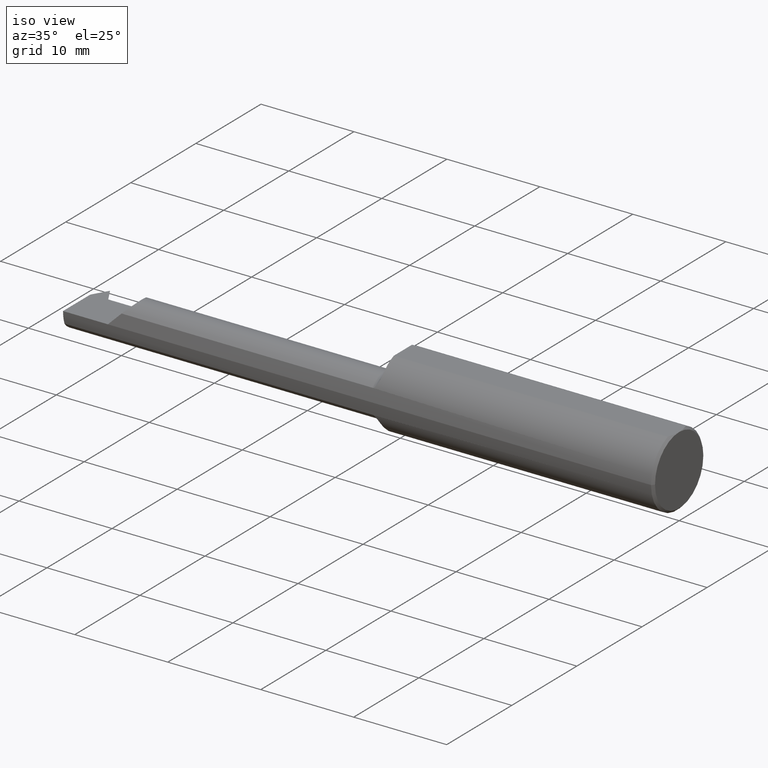
[diagram: clean part render]
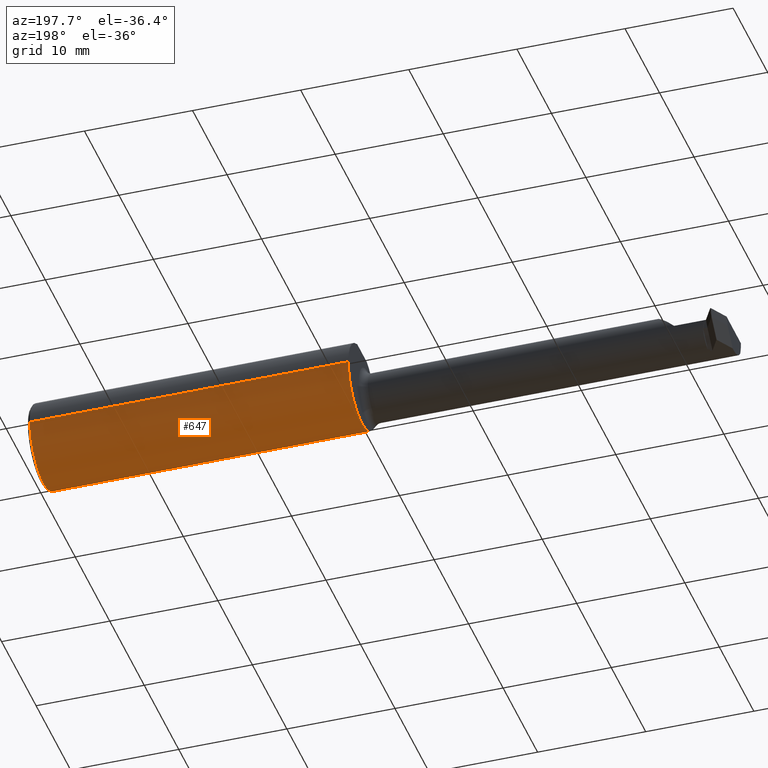
[diagram: tour spotlight — one face highlighted and labeled with its STEP entity id]
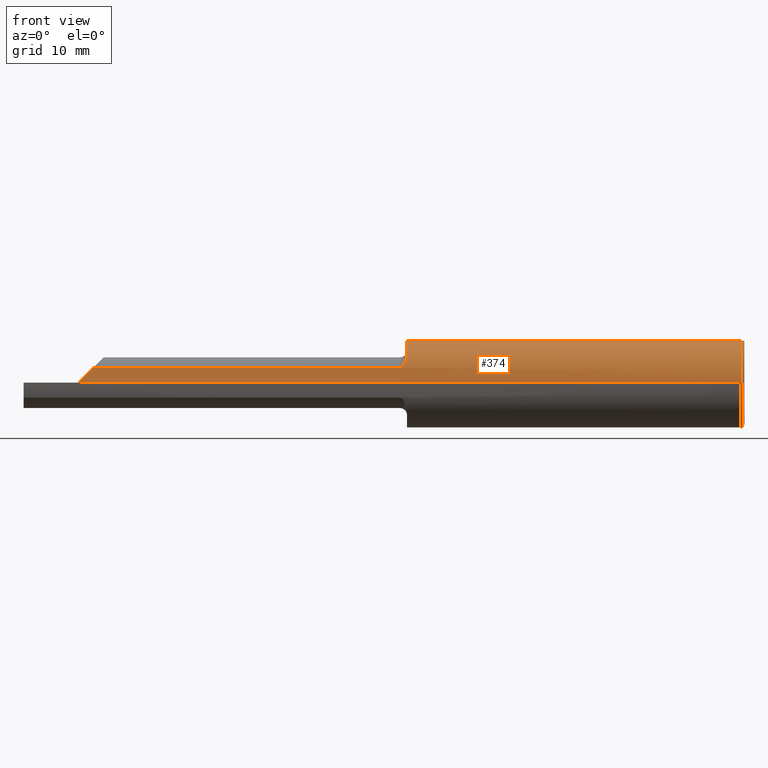
[diagram: tour spotlight — one face highlighted and labeled with its STEP entity id]
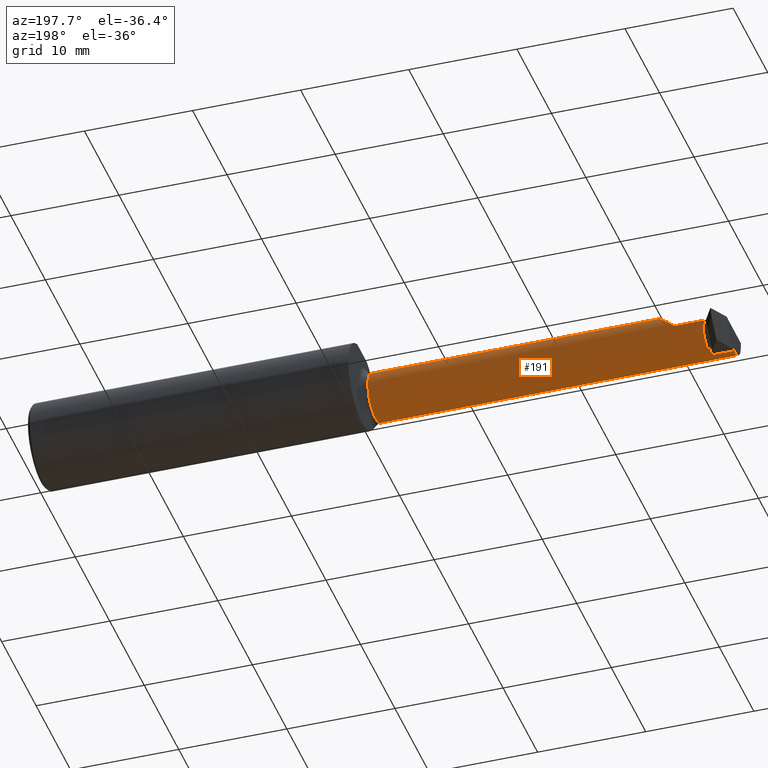
[diagram: tour spotlight — one face highlighted and labeled with its STEP entity id]
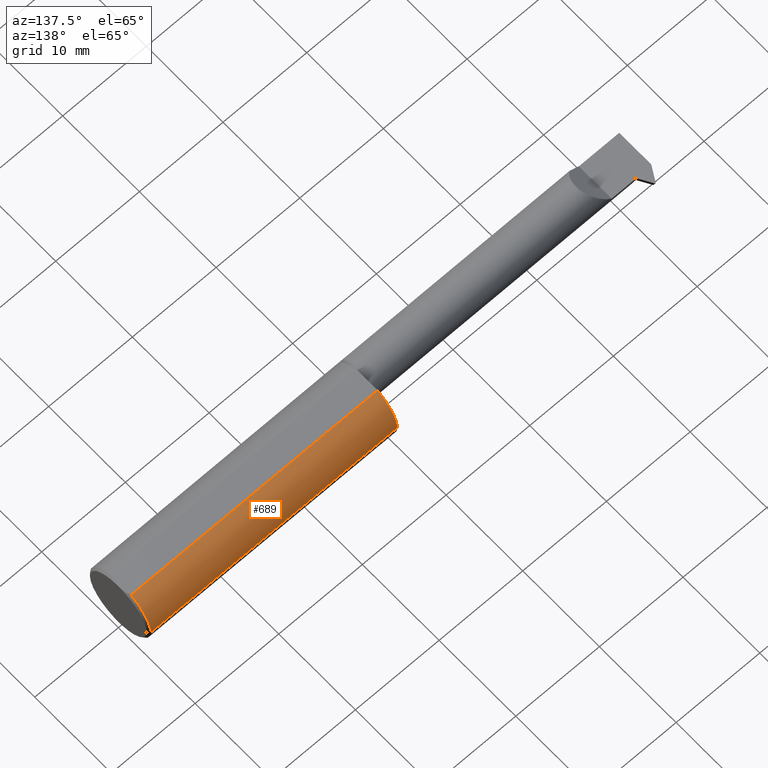
[diagram: tour spotlight — one face highlighted and labeled with its STEP entity id]
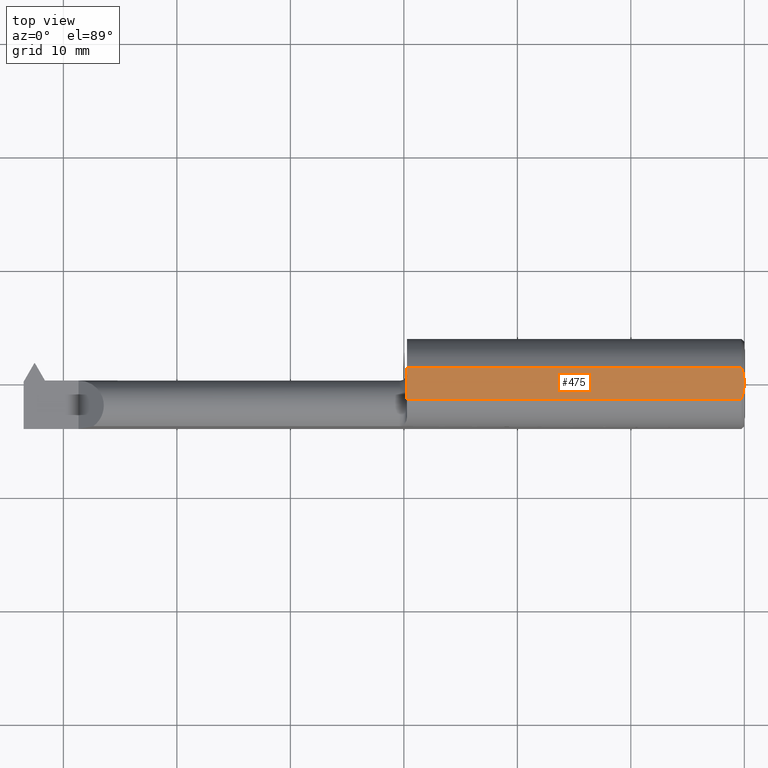
[diagram: tour spotlight — one face highlighted and labeled with its STEP entity id]
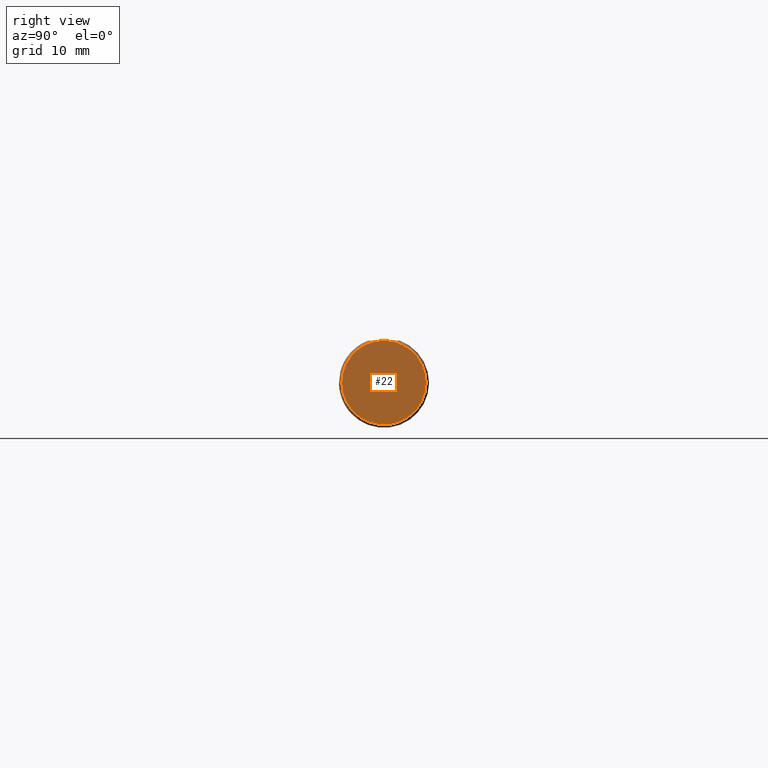
[diagram: tour spotlight — one face highlighted and labeled with its STEP entity id]
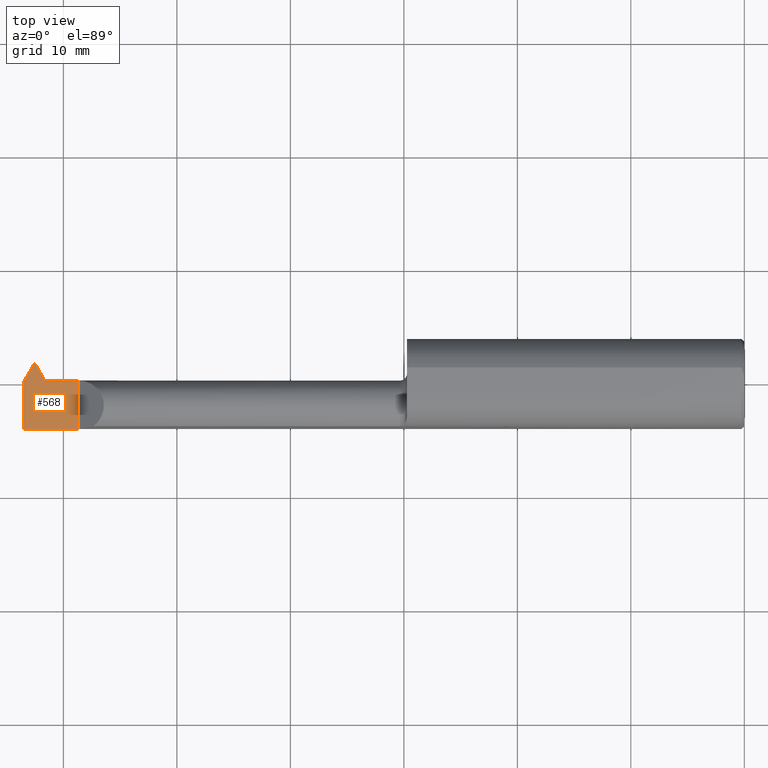
[diagram: tour spotlight — one face highlighted and labeled with its STEP entity id]
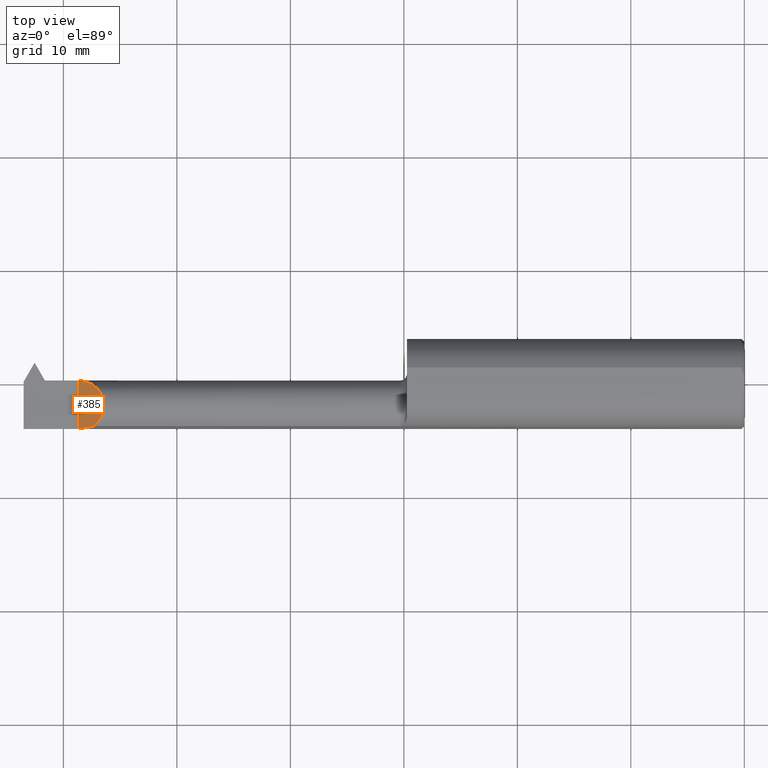
[diagram: tour spotlight — one face highlighted and labeled with its STEP entity id]
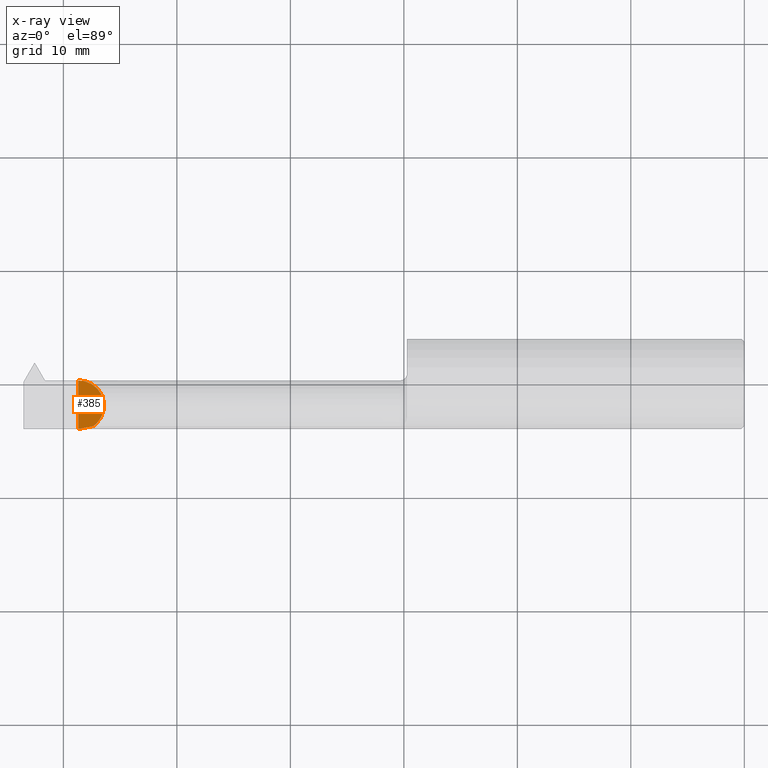
[diagram: x-ray of the same camera — body ghosted, this tour face saturated]
A machine part: a face-by-face anatomy tour. The part has 26 B-rep faces; the first image is the clean iso view, then the 8 largest visible faces are spotlighted one at a time (largest first), each with its STEP entity span.

Face 1 — auxiliary view, entity #647. In plain terms, the highlighted cylindrical surface (partial cylindrical patch) has radius 3.9649 mm, axis along (1, 0, -0).
Definition (entity closure, byte-faithful):
#12 = EDGE_CURVE ( 'NONE', #552, #257, #587, .T. ) ;
#14 = CARTESIAN_POINT ( 'NONE',  ( -1.189346208252527015, -0.1465601710296003668, -0.05373964015989929344 ) ) ;
#23 = CARTESIAN_POINT ( 'NONE',  ( -1.170000000000000151, -0.1142537450715592345, -0.1063639588254146062 ) ) ;
#24 = CARTESIAN_POINT ( 'NONE',  ( -2.500000000000000000, -0.1561000000000000720, 8.875653457662609881E-19 ) ) ;
#45 = VERTEX_POINT ( 'NONE', #320 ) ;
#55 = ORIENTED_EDGE ( 'NONE', *, *, #812, .T. ) ;
#64 = AXIS2_PLACEMENT_3D ( 'NONE', #197, #804, #809 ) ;
#76 = VERTEX_POINT ( 'NONE', #664 ) ;
#77 = CARTESIAN_POINT ( 'NONE',  ( -1.808054491924311113, -0.1472695137976346436, -0.05175809410911783731 ) ) ;
#85 = CARTESIAN_POINT ( 'NONE',  ( -1.173462366684950187, -0.1324922991513197423, -0.08274570526434620044 ) ) ;
#92 = LINE ( 'NONE', #77, #380 ) ;
#100 = DIRECTION ( 'NONE',  ( -1.230512889522860364E-16, 1.000000000000000000, 0.000000000000000000 ) ) ;
#110 = CARTESIAN_POINT ( 'NONE',  ( -2.500000000000000000, -6.123233995736767268E-17, 0.000000000000000000 ) ) ;
#153 = EDGE_CURVE ( 'NONE', #45, #779, #453, .T. ) ;
#156 = DIRECTION ( 'NONE',  ( 1.000000000000000000, 1.301231752219315598E-17, 0.000000000000000000 ) ) ;
#165 = CARTESIAN_POINT ( 'NONE',  ( -1.176939195357871171, -0.1382843393702949397, -0.07265330384103622918 ) ) ;
#172 = LINE ( 'NONE', #390, #592 ) ;
#197 = CARTESIAN_POINT ( 'NONE',  ( -1.170000000000000151, 1.016456843292302760E-16, 0.000000000000000000 ) ) ;
#229 = LINE ( 'NONE', #24, #324 ) ;
#232 = B_SPLINE_CURVE_WITH_KNOTS ( 'NONE', 3,
 ( #430, #238, #506, #14, #824, #695, #620, #755, #165, #85, #371, #629, #687, #23 ),
 .UNSPECIFIED., .F., .F.,
 ( 4, 2, 2, 2, 2, 2, 4 ),
 ( 1.961733332154579801E-07, 0.0001163117065468489460, 0.0002324272397604824393, 0.0004646583061877496428, 0.0009291204390422889287, 0.001393582571896828269, 0.001858044704751367826 ),
 .UNSPECIFIED. ) ;
#238 = CARTESIAN_POINT ( 'NONE',  ( -1.193446618368615209, -0.1472695137976344215, -0.05175809410911828834 ) ) ;
#253 = DIRECTION ( 'NONE',  ( 1.000000000000000000, 1.224646799147352961E-16, -0.000000000000000000 ) ) ;
#257 = VERTEX_POINT ( 'NONE', #756 ) ;
#272 = FACE_OUTER_BOUND ( 'NONE', #284, .T. ) ;
#281 = VERTEX_POINT ( 'NONE', #825 ) ;
#284 = EDGE_LOOP ( 'NONE', ( #681, #429, #845, #694, #612, #865, #787, #55 ) ) ;
#317 = EDGE_CURVE ( 'NONE', #552, #702, #229, .T. ) ;
#320 = CARTESIAN_POINT ( 'NONE',  ( -1.170000000000000151, -0.1142537450715592345, -0.1063639588254146062 ) ) ;
#324 = VECTOR ( 'NONE', #762, 39.37007874015748143 ) ;
#347 = DIRECTION ( 'NONE',  ( 1.000000000000000000, 1.224646799147352961E-16, -0.000000000000000000 ) ) ;
#371 = CARTESIAN_POINT ( 'NONE',  ( -1.172196101700324178, -0.1292903952771553011, -0.08767256201919804148 ) ) ;
#380 = VECTOR ( 'NONE', #156, 39.37007874015748143 ) ;
#390 = CARTESIAN_POINT ( 'NONE',  ( -2.500000000000000000, 0.1560999999999999333, 0.000000000000000000 ) ) ;
#420 = CARTESIAN_POINT ( 'NONE',  ( -2.500000000000000000, -0.1561000000000000720, 8.875653457662611807E-19 ) ) ;
#429 = ORIENTED_EDGE ( 'NONE', *, *, #317, .F. ) ;
#430 = CARTESIAN_POINT ( 'NONE',  ( -1.195000000000000284, -0.1472695137976347268, -0.05175809410911786507 ) ) ;
#453 = CIRCLE ( 'NONE', #64, 0.1561000000000000165 ) ;
#503 = CARTESIAN_POINT ( 'NONE',  ( -1.170000000000000151, 0.1561000000000000998, 0.000000000000000000 ) ) ;
#506 = CARTESIAN_POINT ( 'NONE',  ( -1.191958743194513781, -0.1470959753313503260, -0.05225520737744659278 ) ) ;
#520 = VERTEX_POINT ( 'NONE', #790 ) ;
#525 = DIRECTION ( 'NONE',  ( -1.000000000000000000, -1.224646799147319927E-16, 0.000000000000000000 ) ) ;
#544 = CYLINDRICAL_SURFACE ( 'NONE', #682, 0.1561000000000000165 ) ;
#552 = VERTEX_POINT ( 'NONE', #420 ) ;
#555 = CARTESIAN_POINT ( 'NONE',  ( -2.500000000000000000, -6.123233995736767268E-17, 0.000000000000000000 ) ) ;
#571 = CARTESIAN_POINT ( 'NONE',  ( -2.310000000000000053, -0.1561000000000000998, 0.000000000000000000 ) ) ;
#587 = CIRCLE ( 'NONE', #807, 0.1561000000000000165 ) ;
#592 = VECTOR ( 'NONE', #253, 39.37007874015748143 ) ;
#612 = ORIENTED_EDGE ( 'NONE', *, *, #774, .T. ) ;
#613 = CARTESIAN_POINT ( 'NONE',  ( -2.500000000000000000, -0.1561000000000000720, 1.911673653469018376E-17 ) ) ;
#620 = CARTESIAN_POINT ( 'NONE',  ( -1.183431488668993392, -0.1440181054450020426, -0.06027475888573580187 ) ) ;
#623 = EDGE_CURVE ( 'NONE', #702, #281, #675, .T. ) ;
#629 = CARTESIAN_POINT ( 'NONE',  ( -1.170462611252524265, -0.1222547939313149007, -0.09724325067964838254 ) ) ;
#647 = ADVANCED_FACE ( 'NONE', ( #272 ), #544, .T. ) ;
#654 = DIRECTION ( 'NONE',  ( 1.000000000000000000, 1.224646799147352961E-16, -0.000000000000000000 ) ) ;
#657 = DIRECTION ( 'NONE',  ( 0.000000000000000000, 1.000000000000000000, 0.000000000000000000 ) ) ;
#658 = CIRCLE ( 'NONE', #745, 0.1561000000000000165 ) ;
#664 = CARTESIAN_POINT ( 'NONE',  ( -1.195000000000000284, -0.1472695137976347268, -0.05175809410911786507 ) ) ;
#675 = LINE ( 'NONE', #613, #828 ) ;
#681 = ORIENTED_EDGE ( 'NONE', *, *, #623, .F. ) ;
#682 = AXIS2_PLACEMENT_3D ( 'NONE', #555, #864, #813 ) ;
#687 = CARTESIAN_POINT ( 'NONE',  ( -1.169999999999965956, -0.1183915220908337562, -0.1019192528753025823 ) ) ;
#694 = ORIENTED_EDGE ( 'NONE', *, *, #771, .T. ) ;
#695 = CARTESIAN_POINT ( 'NONE',  ( -1.185093217728559578, -0.1449997488157369341, -0.05785581108117070215 ) ) ;
#702 = VERTEX_POINT ( 'NONE', #571 ) ;
#745 = AXIS2_PLACEMENT_3D ( 'NONE', #832, #525, #100 ) ;
#755 = CARTESIAN_POINT ( 'NONE',  ( -1.179076445919353011, -0.1408180008929575400, -0.06757000550034239494 ) ) ;
#756 = CARTESIAN_POINT ( 'NONE',  ( -2.500000000000000000, -0.1472695137976348934, -0.05175809410911740016 ) ) ;
#762 = DIRECTION ( 'NONE',  ( 1.000000000000000000, 1.224646799147352961E-16, -0.000000000000000000 ) ) ;
#771 = EDGE_CURVE ( 'NONE', #257, #76, #92, .T. ) ;
#774 = EDGE_CURVE ( 'NONE', #76, #45, #232, .T. ) ;
#779 = VERTEX_POINT ( 'NONE', #503 ) ;
#787 = ORIENTED_EDGE ( 'NONE', *, *, #873, .T. ) ;
#790 = CARTESIAN_POINT ( 'NONE',  ( -0.009999999999999092948, 0.1561000000000002386, 0.000000000000000000 ) ) ;
#804 = DIRECTION ( 'NONE',  ( 1.000000000000000000, 1.301231752219315598E-17, 0.000000000000000000 ) ) ;
#807 = AXIS2_PLACEMENT_3D ( 'NONE', #110, #654, #657 ) ;
#809 = DIRECTION ( 'NONE',  ( 0.000000000000000000, -1.000000000000000000, 0.000000000000000000 ) ) ;
#812 = EDGE_CURVE ( 'NONE', #520, #281, #658, .T. ) ;
#813 = DIRECTION ( 'NONE',  ( 0.000000000000000000, 1.000000000000000000, 0.000000000000000000 ) ) ;
#824 = CARTESIAN_POINT ( 'NONE',  ( -1.188188662569930498, -0.1461994008685689184, -0.05471926711676228933 ) ) ;
#825 = CARTESIAN_POINT ( 'NONE',  ( -0.009999999999999054784, -0.1560999999999997667, 1.911673653469018376E-17 ) ) ;
#828 = VECTOR ( 'NONE', #347, 39.37007874015748143 ) ;
#832 = CARTESIAN_POINT ( 'NONE',  ( -0.009999999999999073866, 2.437047130303233649E-16, 0.000000000000000000 ) ) ;
#845 = ORIENTED_EDGE ( 'NONE', *, *, #12, .T. ) ;
#864 = DIRECTION ( 'NONE',  ( 1.000000000000000000, 1.224646799147352961E-16, -0.000000000000000000 ) ) ;
#865 = ORIENTED_EDGE ( 'NONE', *, *, #153, .T. ) ;
#873 = EDGE_CURVE ( 'NONE', #779, #520, #172, .T. ) ;

Face 2 — front view, entity #374. In plain terms, the highlighted cylindrical surface (partial cylindrical patch) has radius 3.9649 mm, axis along (1, 0, -0).
Definition (entity closure, byte-faithful):
#5 = CARTESIAN_POINT ( 'NONE',  ( -1.188181177459758375, -0.1461969813683944575, 0.05472577389936161135 ) ) ;
#10 = CARTESIAN_POINT ( 'NONE',  ( -1.185083227087313507, -0.1449949082926790811, 0.05786810286899488065 ) ) ;
#13 = ORIENTED_EDGE ( 'NONE', *, *, #360, .T. ) ;
#19 = AXIS2_PLACEMENT_3D ( 'NONE', #29, #431, #696 ) ;
#29 = CARTESIAN_POINT ( 'NONE',  ( -1.170000000000000151, 1.016456843292302760E-16, 0.000000000000000000 ) ) ;
#34 = VERTEX_POINT ( 'NONE', #251 ) ;
#81 = CARTESIAN_POINT ( 'NONE',  ( -2.258241905890881807, -0.1472695137976346991, 0.05175809410911773323 ) ) ;
#82 = CARTESIAN_POINT ( 'NONE',  ( -1.195000000000000284, -0.1472695137976347268, 0.05175809410911789282 ) ) ;
#90 = EDGE_CURVE ( 'NONE', #325, #111, #348, .T. ) ;
#101 = DIRECTION ( 'NONE',  ( 1.000000000000000000, 1.224646799147352961E-16, -0.000000000000000000 ) ) ;
#106 = DIRECTION ( 'NONE',  ( 0.000000000000000000, 1.000000000000000000, 0.000000000000000000 ) ) ;
#111 = VERTEX_POINT ( 'NONE', #680 ) ;
#133 = CARTESIAN_POINT ( 'NONE',  ( -1.191954860809189887, -0.1470959542221375871, 0.05225537509141417458 ) ) ;
#162 = AXIS2_PLACEMENT_3D ( 'NONE', #768, #379, #575 ) ;
#170 = CYLINDRICAL_SURFACE ( 'NONE', #203, 0.1561000000000000165 ) ;
#171 = ORIENTED_EDGE ( 'NONE', *, *, #590, .T. ) ;
#186 = CARTESIAN_POINT ( 'NONE',  ( -2.258241905890881807, -0.1472695137976346991, 0.05175809410911773323 ) ) ;
#196 = CARTESIAN_POINT ( 'NONE',  ( -2.292330217250612812, -0.1561000000000000443, 0.01766978274938703006 ) ) ;
#203 = AXIS2_PLACEMENT_3D ( 'NONE', #709, #101, #106 ) ;
#207 = ORIENTED_EDGE ( 'NONE', *, *, #623, .T. ) ;
#251 = CARTESIAN_POINT ( 'NONE',  ( -1.170000000000000151, -0.1142537450715740699, 0.1063639588254092772 ) ) ;
#261 = VERTEX_POINT ( 'NONE', #82 ) ;
#265 = CARTESIAN_POINT ( 'NONE',  ( -2.310000000000000053, -0.1561000000000000998, 0.000000000000000000 ) ) ;
#269 = CARTESIAN_POINT ( 'NONE',  ( -1.179024368971148817, -0.1407725817217402864, 0.06766890069852188327 ) ) ;
#271 = ORIENTED_EDGE ( 'NONE', *, *, #90, .F. ) ;
#278 = CARTESIAN_POINT ( 'NONE',  ( -1.173484131199146629, -0.1325297027135328987, 0.08268119770262059853 ) ) ;
#281 = VERTEX_POINT ( 'NONE', #825 ) ;
#291 = EDGE_CURVE ( 'NONE', #325, #34, #685, .T. ) ;
#316 =( BOUNDED_CURVE ( )  B_SPLINE_CURVE ( 3, ( #265, #196, #829, #81 ),
 .UNSPECIFIED., .F., .T. ) 
 B_SPLINE_CURVE_WITH_KNOTS ( ( 4, 4 ),
 ( 4.712388980384689674, 5.050356325447890704 ),
 .UNSPECIFIED. ) 
 CURVE ( )  GEOMETRIC_REPRESENTATION_ITEM ( )  RATIONAL_B_SPLINE_CURVE ( ( 1.000000000000000000, 0.9905041350217796969, 0.9905041350217796969, 1.000000000000000000 ) ) 
 REPRESENTATION_ITEM ( '' )  );
#323 = ORIENTED_EDGE ( 'NONE', *, *, #651, .F. ) ;
#325 = VERTEX_POINT ( 'NONE', #496 ) ;
#347 = DIRECTION ( 'NONE',  ( 1.000000000000000000, 1.224646799147352961E-16, -0.000000000000000000 ) ) ;
#348 = LINE ( 'NONE', #795, #519 ) ;
#352 = CARTESIAN_POINT ( 'NONE',  ( -1.193447391068662933, -0.1472695137984707525, 0.05175809410673880978 ) ) ;
#355 = CARTESIAN_POINT ( 'NONE',  ( -1.169999999999967066, -0.1183584908119259815, 0.1019547343237290626 ) ) ;
#360 = EDGE_CURVE ( 'NONE', #281, #111, #653, .T. ) ;
#374 = ADVANCED_FACE ( 'NONE', ( #383 ), #170, .T. ) ;
#375 = EDGE_LOOP ( 'NONE', ( #323, #207, #13, #271, #769, #388, #171 ) ) ;
#379 = DIRECTION ( 'NONE',  ( -1.000000000000000000, -1.224646799147319927E-16, 0.000000000000000000 ) ) ;
#383 = FACE_OUTER_BOUND ( 'NONE', #375, .T. ) ;
#388 = ORIENTED_EDGE ( 'NONE', *, *, #603, .T. ) ;
#415 = CARTESIAN_POINT ( 'NONE',  ( -1.172189633566586453, -0.1292798516107535878, 0.08769141204669662903 ) ) ;
#431 = DIRECTION ( 'NONE',  ( 1.000000000000000000, 1.301231752219315598E-17, 0.000000000000000000 ) ) ;
#477 = DIRECTION ( 'NONE',  ( -1.000000000000000000, -1.301231752219315598E-17, -0.000000000000000000 ) ) ;
#483 = CARTESIAN_POINT ( 'NONE',  ( -1.170448686022199425, -0.1221823836830935872, 0.09733719174477610536 ) ) ;
#496 = CARTESIAN_POINT ( 'NONE',  ( -1.170000000000000151, -0.05497272050753895800, 0.1461000000000000076 ) ) ;
#519 = VECTOR ( 'NONE', #814, 39.37007874015748143 ) ;
#541 = CARTESIAN_POINT ( 'NONE',  ( -1.170000000000000151, -0.1142537450715740699, 0.1063639588254092772 ) ) ;
#571 = CARTESIAN_POINT ( 'NONE',  ( -2.310000000000000053, -0.1561000000000000998, 0.000000000000000000 ) ) ;
#575 = DIRECTION ( 'NONE',  ( -1.230512889522860364E-16, 1.000000000000000000, 8.881784197001252323E-16 ) ) ;
#590 = EDGE_CURVE ( 'NONE', #261, #823, #663, .T. ) ;
#603 = EDGE_CURVE ( 'NONE', #34, #261, #659, .T. ) ;
#613 = CARTESIAN_POINT ( 'NONE',  ( -2.500000000000000000, -0.1561000000000000720, 1.911673653469018376E-17 ) ) ;
#617 = CARTESIAN_POINT ( 'NONE',  ( -1.176922816836092789, -0.1382559065226508788, 0.07270217924159663725 ) ) ;
#623 = EDGE_CURVE ( 'NONE', #702, #281, #675, .T. ) ;
#651 = EDGE_CURVE ( 'NONE', #702, #823, #316, .T. ) ;
#653 = CIRCLE ( 'NONE', #162, 0.1561000000000000165 ) ;
#659 = B_SPLINE_CURVE_WITH_KNOTS ( 'NONE', 3,
 ( #541, #355, #483, #415, #278, #617, #269, #669, #10, #5, #737, #133, #352, #874 ),
 .UNSPECIFIED., .F., .F.,
 ( 4, 2, 2, 2, 2, 2, 4 ),
 ( 0.0002357998142103217740, 0.0006937643599539136067, 0.001151728905697505575, 0.001609693451441098627, 0.001838675724312894937, 0.001953166860748793091, 0.002067657997184691680 ),
 .UNSPECIFIED. ) ;
#663 = LINE ( 'NONE', #802, #842 ) ;
#669 = CARTESIAN_POINT ( 'NONE',  ( -1.183413277050720858, -0.1440082460785117313, 0.06029952348881716107 ) ) ;
#675 = LINE ( 'NONE', #613, #828 ) ;
#680 = CARTESIAN_POINT ( 'NONE',  ( -0.009999999999999073866, -0.05497272050753881228, 0.1461000000000000076 ) ) ;
#685 = CIRCLE ( 'NONE', #19, 0.1561000000000000165 ) ;
#696 = DIRECTION ( 'NONE',  ( 0.000000000000000000, -1.000000000000000000, 8.881784197001252323E-16 ) ) ;
#702 = VERTEX_POINT ( 'NONE', #571 ) ;
#709 = CARTESIAN_POINT ( 'NONE',  ( -2.500000000000000000, -6.123233995736767268E-17, 0.000000000000000000 ) ) ;
#737 = CARTESIAN_POINT ( 'NONE',  ( -1.189325941459024483, -0.1465552322353793901, 0.05375321273095774038 ) ) ;
#768 = CARTESIAN_POINT ( 'NONE',  ( -0.009999999999999073866, 2.437047130303233649E-16, 0.000000000000000000 ) ) ;
#769 = ORIENTED_EDGE ( 'NONE', *, *, #291, .T. ) ;
#795 = CARTESIAN_POINT ( 'NONE',  ( -2.500000000000000000, -0.05497272050753911760, 0.1461000000000000076 ) ) ;
#802 = CARTESIAN_POINT ( 'NONE',  ( -1.808054491924311113, -0.1472695137976346436, 0.05175809410911783731 ) ) ;
#814 = DIRECTION ( 'NONE',  ( 1.000000000000000000, 1.224646799147352961E-16, -0.000000000000000000 ) ) ;
#823 = VERTEX_POINT ( 'NONE', #186 ) ;
#825 = CARTESIAN_POINT ( 'NONE',  ( -0.009999999999999054784, -0.1560999999999997667, 1.911673653469018376E-17 ) ) ;
#828 = VECTOR ( 'NONE', #347, 39.37007874015748143 ) ;
#829 = CARTESIAN_POINT ( 'NONE',  ( -2.274912119307999969, -0.1531282856005203030, 0.03508788069200007714 ) ) ;
#842 = VECTOR ( 'NONE', #477, 39.37007874015748143 ) ;
#874 = CARTESIAN_POINT ( 'NONE',  ( -1.195000000000000284, -0.1472695137976347268, 0.05175809410911789282 ) ) ;

Face 3 — auxiliary view, entity #191. In plain terms, the highlighted cylindrical surface (edge-blend (fillet) strip) has radius 2.2352 mm, axis along (-1, -0, -0).
Definition (entity closure, byte-faithful):
#6 = CARTESIAN_POINT ( 'NONE',  ( -2.500000000000000000, 0.01189999999999989504, 8.875653457662611807E-19 ) ) ;
#33 = DIRECTION ( 'NONE',  ( -1.000000000000000000, -1.301231752219315598E-17, -0.000000000000000000 ) ) ;
#37 = CARTESIAN_POINT ( 'NONE',  ( -2.258241905890881807, -0.1472695137976346991, 0.05175809410911773323 ) ) ;
#43 = CARTESIAN_POINT ( 'NONE',  ( -2.421108983848621943, -0.07610000000000008424, 0.000000000000000000 ) ) ;
#49 = CIRCLE ( 'NONE', #135, 0.08799999999999996714 ) ;
#59 = CARTESIAN_POINT ( 'NONE',  ( -2.413632881043807465, 0.007084169345407169416, -0.02871226167188161912 ) ) ;
#68 = DIRECTION ( 'NONE',  ( -1.000000000000000000, -1.301231752219315598E-17, -0.000000000000000000 ) ) ;
#72 = DIRECTION ( 'NONE',  ( 1.000000000000000000, 1.553500558300393113E-17, -0.000000000000000000 ) ) ;
#76 = VERTEX_POINT ( 'NONE', #664 ) ;
#77 = CARTESIAN_POINT ( 'NONE',  ( -1.808054491924311113, -0.1472695137976346436, -0.05175809410911783731 ) ) ;
#80 = VERTEX_POINT ( 'NONE', #59 ) ;
#82 = CARTESIAN_POINT ( 'NONE',  ( -1.195000000000000284, -0.1472695137976347268, 0.05175809410911789282 ) ) ;
#86 = EDGE_CURVE ( 'NONE', #257, #412, #509, .T. ) ;
#91 = AXIS2_PLACEMENT_3D ( 'NONE', #738, #493, #545 ) ;
#92 = LINE ( 'NONE', #77, #380 ) ;
#96 = CARTESIAN_POINT ( 'NONE',  ( -2.399999999999999911, -0.07610000000000007037, -0.08799999999999992550 ) ) ;
#108 = CARTESIAN_POINT ( 'NONE',  ( -2.421108983848621943, 0.01189999999999981004, 0.000000000000000000 ) ) ;
#112 = EDGE_CURVE ( 'NONE', #231, #80, #49, .T. ) ;
#123 = ORIENTED_EDGE ( 'NONE', *, *, #868, .F. ) ;
#124 = EDGE_CURVE ( 'NONE', #261, #76, #438, .T. ) ;
#125 =( BOUNDED_CURVE ( )  B_SPLINE_CURVE ( 3, ( #179, #322, #245, #37 ),
 .UNSPECIFIED., .F., .T. ) 
 B_SPLINE_CURVE_WITH_KNOTS ( ( 4, 4 ),
 ( 1.570796326794896558, 4.083606959790377466 ),
 .UNSPECIFIED. ) 
 CURVE ( )  GEOMETRIC_REPRESENTATION_ITEM ( )  RATIONAL_B_SPLINE_CURVE ( ( 1.000000000000000000, 0.5394915924057044343, 0.5394915924057044343, 1.000000000000000000 ) ) 
 REPRESENTATION_ITEM ( '' )  );
#129 = CARTESIAN_POINT ( 'NONE',  ( -2.500000000000000000, -0.07610000000000008424, 0.000000000000000000 ) ) ;
#134 = DIRECTION ( 'NONE',  ( 1.000000000000000000, -0.000000000000000000, 0.000000000000000000 ) ) ;
#135 = AXIS2_PLACEMENT_3D ( 'NONE', #556, #134, #606 ) ;
#155 = EDGE_CURVE ( 'NONE', #345, #354, #416, .T. ) ;
#156 = DIRECTION ( 'NONE',  ( 1.000000000000000000, 1.301231752219315598E-17, 0.000000000000000000 ) ) ;
#179 = CARTESIAN_POINT ( 'NONE',  ( -2.310000000000000053, 0.01189999999999987769, 0.000000000000000000 ) ) ;
#186 = CARTESIAN_POINT ( 'NONE',  ( -2.258241905890881807, -0.1472695137976346991, 0.05175809410911773323 ) ) ;
#191 = ADVANCED_FACE ( 'NONE', ( #537 ), #735, .T. ) ;
#208 = AXIS2_PLACEMENT_3D ( 'NONE', #213, #68, #359 ) ;
#213 = CARTESIAN_POINT ( 'NONE',  ( -2.500000000000000000, -0.07610000000000008424, 0.000000000000000000 ) ) ;
#220 = AXIS2_PLACEMENT_3D ( 'NONE', #43, #387, #463 ) ;
#231 = VERTEX_POINT ( 'NONE', #293 ) ;
#237 = AXIS2_PLACEMENT_3D ( 'NONE', #129, #72, #478 ) ;
#245 = CARTESIAN_POINT ( 'NONE',  ( -2.174606210947998441, -0.08644537803012217192, 0.1353937890520004739 ) ) ;
#248 = ORIENTED_EDGE ( 'NONE', *, *, #590, .F. ) ;
#257 = VERTEX_POINT ( 'NONE', #756 ) ;
#259 = CARTESIAN_POINT ( 'NONE',  ( -2.421108983848621943, -0.04738773832811973147, -0.08318416934540759367 ) ) ;
#261 = VERTEX_POINT ( 'NONE', #82 ) ;
#275 = EDGE_CURVE ( 'NONE', #80, #757, #822, .T. ) ;
#293 = CARTESIAN_POINT ( 'NONE',  ( -2.413632881043807465, -0.04738773832811985637, -0.08318416934540769081 ) ) ;
#303 = VECTOR ( 'NONE', #492, 39.37007874015748143 ) ;
#310 = ORIENTED_EDGE ( 'NONE', *, *, #112, .T. ) ;
#311 =( BOUNDED_CURVE ( )  B_SPLINE_CURVE ( 3, ( #108, #318, #775, #720 ),
 .UNSPECIFIED., .F., .T. ) 
 B_SPLINE_CURVE_WITH_KNOTS ( ( 4, 4 ),
 ( 1.570796326794896780, 1.903157296839101287 ),
 .UNSPECIFIED. ) 
 CURVE ( )  GEOMETRIC_REPRESENTATION_ITEM ( )  RATIONAL_B_SPLINE_CURVE ( ( 1.000000000000000000, 0.9908158471105027454, 0.9908158471105027454, 1.000000000000000000 ) ) 
 REPRESENTATION_ITEM ( '' )  );
#318 = CARTESIAN_POINT ( 'NONE',  ( -2.419116291096571558, 0.01189999999999990891, -0.009794397791003125672 ) ) ;
#322 = CARTESIAN_POINT ( 'NONE',  ( -2.206585760359397685, 0.01189999999999990371, 0.1034142396406013964 ) ) ;
#345 = VERTEX_POINT ( 'NONE', #572 ) ;
#349 = EDGE_LOOP ( 'NONE', ( #486, #570, #310, #861, #123, #384, #437, #248, #615, #432, #788, #686 ) ) ;
#354 = VERTEX_POINT ( 'NONE', #626 ) ;
#359 = DIRECTION ( 'NONE',  ( 0.000000000000000000, -1.000000000000000000, 0.000000000000000000 ) ) ;
#364 = VECTOR ( 'NONE', #510, 39.37007874015748143 ) ;
#380 = VECTOR ( 'NONE', #156, 39.37007874015748143 ) ;
#384 = ORIENTED_EDGE ( 'NONE', *, *, #155, .T. ) ;
#387 = DIRECTION ( 'NONE',  ( -1.000000000000000000, -1.301231752219315598E-17, -0.000000000000000000 ) ) ;
#401 = EDGE_CURVE ( 'NONE', #826, #739, #481, .T. ) ;
#412 = VERTEX_POINT ( 'NONE', #715 ) ;
#416 = LINE ( 'NONE', #6, #485 ) ;
#419 = EDGE_CURVE ( 'NONE', #354, #823, #125, .T. ) ;
#432 = ORIENTED_EDGE ( 'NONE', *, *, #771, .F. ) ;
#434 = CARTESIAN_POINT ( 'NONE',  ( -2.421108983848621943, -0.07610000000000007037, -0.08799999999999992550 ) ) ;
#437 = ORIENTED_EDGE ( 'NONE', *, *, #419, .T. ) ;
#438 = CIRCLE ( 'NONE', #91, 0.08800000000000007816 ) ;
#463 = DIRECTION ( 'NONE',  ( 0.000000000000000000, -1.000000000000000000, 0.000000000000000000 ) ) ;
#477 = DIRECTION ( 'NONE',  ( -1.000000000000000000, -1.301231752219315598E-17, -0.000000000000000000 ) ) ;
#478 = DIRECTION ( 'NONE',  ( 0.000000000000000000, -1.000000000000000000, 0.000000000000000000 ) ) ;
#481 = CIRCLE ( 'NONE', #220, 0.08799999999999988387 ) ;
#485 = VECTOR ( 'NONE', #489, 39.37007874015748143 ) ;
#486 = ORIENTED_EDGE ( 'NONE', *, *, #401, .F. ) ;
#489 = DIRECTION ( 'NONE',  ( 1.000000000000000000, 1.301231752219315598E-17, 0.000000000000000000 ) ) ;
#492 = DIRECTION ( 'NONE',  ( 1.000000000000000000, 1.301231752219315598E-17, 0.000000000000000000 ) ) ;
#493 = DIRECTION ( 'NONE',  ( -1.000000000000000000, -1.301231752219315598E-17, -0.000000000000000000 ) ) ;
#498 = LINE ( 'NONE', #96, #364 ) ;
#509 = CIRCLE ( 'NONE', #237, 0.08799999999999992550 ) ;
#510 = DIRECTION ( 'NONE',  ( -1.000000000000000000, -1.553500558300393113E-17, -0.000000000000000000 ) ) ;
#537 = FACE_OUTER_BOUND ( 'NONE', #349, .T. ) ;
#545 = DIRECTION ( 'NONE',  ( 0.000000000000000000, -1.000000000000000000, 0.000000000000000000 ) ) ;
#556 = CARTESIAN_POINT ( 'NONE',  ( -2.413632881043807465, -0.07610000000000008424, 0.000000000000000000 ) ) ;
#569 = CARTESIAN_POINT ( 'NONE',  ( -2.500000000000000000, 0.007084169345407178089, -0.02871226167188164688 ) ) ;
#570 = ORIENTED_EDGE ( 'NONE', *, *, #586, .T. ) ;
#572 = CARTESIAN_POINT ( 'NONE',  ( -2.421108983848621943, 0.01189999999999981004, 0.000000000000000000 ) ) ;
#586 = EDGE_CURVE ( 'NONE', #826, #231, #808, .T. ) ;
#590 = EDGE_CURVE ( 'NONE', #261, #823, #663, .T. ) ;
#606 = DIRECTION ( 'NONE',  ( 0.000000000000000000, -8.731048275205390253E-16, 1.000000000000000000 ) ) ;
#615 = ORIENTED_EDGE ( 'NONE', *, *, #124, .T. ) ;
#626 = CARTESIAN_POINT ( 'NONE',  ( -2.310000000000000053, 0.01189999999999987769, 0.000000000000000000 ) ) ;
#663 = LINE ( 'NONE', #802, #842 ) ;
#664 = CARTESIAN_POINT ( 'NONE',  ( -1.195000000000000284, -0.1472695137976347268, -0.05175809410911786507 ) ) ;
#679 = EDGE_CURVE ( 'NONE', #739, #412, #498, .T. ) ;
#686 = ORIENTED_EDGE ( 'NONE', *, *, #679, .F. ) ;
#715 = CARTESIAN_POINT ( 'NONE',  ( -2.500000000000000000, -0.07610000000000007037, -0.08799999999999992550 ) ) ;
#720 = CARTESIAN_POINT ( 'NONE',  ( -2.415267408189822440, 0.007084169345407173753, -0.02871226167188156708 ) ) ;
#735 = CYLINDRICAL_SURFACE ( 'NONE', #208, 0.08799999999999995326 ) ;
#738 = CARTESIAN_POINT ( 'NONE',  ( -1.195000000000000284, -0.07610000000000005649, 0.000000000000000000 ) ) ;
#739 = VERTEX_POINT ( 'NONE', #434 ) ;
#742 = CARTESIAN_POINT ( 'NONE',  ( -2.500000000000000000, -0.04738773832811993270, -0.08318416934540776020 ) ) ;
#756 = CARTESIAN_POINT ( 'NONE',  ( -2.500000000000000000, -0.1472695137976348934, -0.05175809410911740016 ) ) ;
#757 = VERTEX_POINT ( 'NONE', #758 ) ;
#758 = CARTESIAN_POINT ( 'NONE',  ( -2.415267408189822440, 0.007084169345407173753, -0.02871226167188156708 ) ) ;
#771 = EDGE_CURVE ( 'NONE', #257, #76, #92, .T. ) ;
#775 = CARTESIAN_POINT ( 'NONE',  ( -2.417151050136866708, 0.01027984334874561950, -0.01945386571184654773 ) ) ;
#778 = VECTOR ( 'NONE', #33, 39.37007874015748143 ) ;
#788 = ORIENTED_EDGE ( 'NONE', *, *, #86, .T. ) ;
#802 = CARTESIAN_POINT ( 'NONE',  ( -1.808054491924311113, -0.1472695137976346436, 0.05175809410911783731 ) ) ;
#808 = LINE ( 'NONE', #742, #303 ) ;
#822 = LINE ( 'NONE', #569, #778 ) ;
#823 = VERTEX_POINT ( 'NONE', #186 ) ;
#826 = VERTEX_POINT ( 'NONE', #259 ) ;
#842 = VECTOR ( 'NONE', #477, 39.37007874015748143 ) ;
#861 = ORIENTED_EDGE ( 'NONE', *, *, #275, .T. ) ;
#868 = EDGE_CURVE ( 'NONE', #345, #757, #311, .T. ) ;

Face 4 — auxiliary view, entity #689. In plain terms, the highlighted cylindrical surface (partial cylindrical patch) has radius 3.9649 mm, axis along (1, 0, -0).
Definition (entity closure, byte-faithful):
#2 = AXIS2_PLACEMENT_3D ( 'NONE', #761, #17, #563 ) ;
#9 = AXIS2_PLACEMENT_3D ( 'NONE', #339, #773, #42 ) ;
#17 = DIRECTION ( 'NONE',  ( 1.000000000000000000, 1.224646799147352961E-16, -0.000000000000000000 ) ) ;
#42 = DIRECTION ( 'NONE',  ( -1.230512889522860364E-16, 1.000000000000000000, 0.000000000000000000 ) ) ;
#84 = EDGE_CURVE ( 'NONE', #274, #520, #120, .T. ) ;
#120 = CIRCLE ( 'NONE', #9, 0.1561000000000000165 ) ;
#137 = ORIENTED_EDGE ( 'NONE', *, *, #873, .F. ) ;
#172 = LINE ( 'NONE', #390, #592 ) ;
#177 = AXIS2_PLACEMENT_3D ( 'NONE', #693, #631, #226 ) ;
#202 = ORIENTED_EDGE ( 'NONE', *, *, #244, .T. ) ;
#226 = DIRECTION ( 'NONE',  ( 0.000000000000000000, -1.000000000000000000, 0.000000000000000000 ) ) ;
#228 = FACE_OUTER_BOUND ( 'NONE', #294, .T. ) ;
#244 = EDGE_CURVE ( 'NONE', #779, #381, #564, .T. ) ;
#253 = DIRECTION ( 'NONE',  ( 1.000000000000000000, 1.224646799147352961E-16, -0.000000000000000000 ) ) ;
#260 = CARTESIAN_POINT ( 'NONE',  ( -1.170000000000000151, 0.05497272050753924943, 0.1461000000000000354 ) ) ;
#274 = VERTEX_POINT ( 'NONE', #706 ) ;
#294 = EDGE_LOOP ( 'NONE', ( #137, #202, #505, #796 ) ) ;
#339 = CARTESIAN_POINT ( 'NONE',  ( -0.009999999999999073866, 2.437047130303233649E-16, 0.000000000000000000 ) ) ;
#358 = CARTESIAN_POINT ( 'NONE',  ( -2.500000000000000000, 0.05497272050753895106, 0.1461000000000000076 ) ) ;
#377 = CYLINDRICAL_SURFACE ( 'NONE', #2, 0.1561000000000000165 ) ;
#381 = VERTEX_POINT ( 'NONE', #260 ) ;
#390 = CARTESIAN_POINT ( 'NONE',  ( -2.500000000000000000, 0.1560999999999999333, 0.000000000000000000 ) ) ;
#393 = VECTOR ( 'NONE', #704, 39.37007874015748143 ) ;
#503 = CARTESIAN_POINT ( 'NONE',  ( -1.170000000000000151, 0.1561000000000000998, 0.000000000000000000 ) ) ;
#505 = ORIENTED_EDGE ( 'NONE', *, *, #665, .F. ) ;
#520 = VERTEX_POINT ( 'NONE', #790 ) ;
#563 = DIRECTION ( 'NONE',  ( 0.000000000000000000, 1.000000000000000000, 0.000000000000000000 ) ) ;
#564 = CIRCLE ( 'NONE', #177, 0.1561000000000000165 ) ;
#592 = VECTOR ( 'NONE', #253, 39.37007874015748143 ) ;
#631 = DIRECTION ( 'NONE',  ( 1.000000000000000000, 1.301231752219315598E-17, 0.000000000000000000 ) ) ;
#665 = EDGE_CURVE ( 'NONE', #274, #381, #692, .T. ) ;
#689 = ADVANCED_FACE ( 'NONE', ( #228 ), #377, .T. ) ;
#692 = LINE ( 'NONE', #358, #393 ) ;
#693 = CARTESIAN_POINT ( 'NONE',  ( -1.170000000000000151, 1.016456843292302760E-16, 0.000000000000000000 ) ) ;
#704 = DIRECTION ( 'NONE',  ( -1.000000000000000000, -1.224646799147352961E-16, 0.000000000000000000 ) ) ;
#706 = CARTESIAN_POINT ( 'NONE',  ( -0.009999999999999073866, 0.05497272050753925637, 0.1461000000000000076 ) ) ;
#761 = CARTESIAN_POINT ( 'NONE',  ( -2.500000000000000000, -6.123233995736767268E-17, 0.000000000000000000 ) ) ;
#773 = DIRECTION ( 'NONE',  ( -1.000000000000000000, -1.224646799147319927E-16, 0.000000000000000000 ) ) ;
#779 = VERTEX_POINT ( 'NONE', #503 ) ;
#790 = CARTESIAN_POINT ( 'NONE',  ( -0.009999999999999092948, 0.1561000000000002386, 0.000000000000000000 ) ) ;
#796 = ORIENTED_EDGE ( 'NONE', *, *, #84, .T. ) ;
#873 = EDGE_CURVE ( 'NONE', #779, #520, #172, .T. ) ;

Face 5 — top view, entity #475. In plain terms, the highlighted planar face has unit normal (-0, 0, -1).
Definition (entity closure, byte-faithful):
#26 = CARTESIAN_POINT ( 'NONE',  ( 6.904318952737417485E-16, 0.009396510398413217627, 0.1461000000000000631 ) ) ;
#63 = CARTESIAN_POINT ( 'NONE',  ( -0.0009113193687663462966, -0.01867274705588926886, 0.1460999999999999799 ) ) ;
#90 = EDGE_CURVE ( 'NONE', #325, #111, #348, .T. ) ;
#111 = VERTEX_POINT ( 'NONE', #680 ) ;
#119 = DIRECTION ( 'NONE',  ( 0.000000000000000000, 1.000000000000000000, 1.414195192744475008E-16 ) ) ;
#143 = CARTESIAN_POINT ( 'NONE',  ( -0.006903212852520313608, -0.04617911398309882537, 0.1461000000000000354 ) ) ;
#151 = CARTESIAN_POINT ( 'NONE',  ( -0.009999999999999073866, 0.05497272050753925637, 0.1461000000000000076 ) ) ;
#198 = ORIENTED_EDGE ( 'NONE', *, *, #798, .T. ) ;
#219 = CARTESIAN_POINT ( 'NONE',  ( -0.006876379561361965764, 0.04610291843171875070, 0.1461000000000000354 ) ) ;
#225 = EDGE_CURVE ( 'NONE', #111, #619, #234, .T. ) ;
#234 = B_SPLINE_CURVE_WITH_KNOTS ( 'NONE', 3,
 ( #671, #143, #621, #63, #421, #618 ),
 .UNSPECIFIED., .F., .F.,
 ( 4, 2, 4 ),
 ( 0.001497827971916989567, 0.002206109860466244632, 0.002914391749015499914 ),
 .UNSPECIFIED. ) ;
#260 = CARTESIAN_POINT ( 'NONE',  ( -1.170000000000000151, 0.05497272050753924943, 0.1461000000000000354 ) ) ;
#274 = VERTEX_POINT ( 'NONE', #706 ) ;
#319 = FACE_OUTER_BOUND ( 'NONE', #442, .T. ) ;
#325 = VERTEX_POINT ( 'NONE', #496 ) ;
#328 = CARTESIAN_POINT ( 'NONE',  ( -1.170000000000000151, 0.1811000000000001497, 0.1461000000000000354 ) ) ;
#348 = LINE ( 'NONE', #795, #519 ) ;
#358 = CARTESIAN_POINT ( 'NONE',  ( -2.500000000000000000, 0.05497272050753895106, 0.1461000000000000076 ) ) ;
#369 = ORIENTED_EDGE ( 'NONE', *, *, #90, .T. ) ;
#376 = B_SPLINE_CURVE_WITH_KNOTS ( 'NONE', 3,
 ( #633, #26, #558, #816, #219, #151 ),
 .UNSPECIFIED., .F., .F.,
 ( 4, 2, 4 ),
 ( 0.002914391749015499914, 0.003623333355014890598, 0.004332274961014280848 ),
 .UNSPECIFIED. ) ;
#381 = VERTEX_POINT ( 'NONE', #260 ) ;
#392 = ORIENTED_EDGE ( 'NONE', *, *, #225, .T. ) ;
#393 = VECTOR ( 'NONE', #704, 39.37007874015748143 ) ;
#410 = CARTESIAN_POINT ( 'NONE',  ( -3.241309669837331952E-33, 2.086455426436077518E-16, 0.1461000000000000354 ) ) ;
#421 = CARTESIAN_POINT ( 'NONE',  ( 6.814946972475936967E-16, -0.009387766318748616556, 0.1461000000000000354 ) ) ;
#442 = EDGE_LOOP ( 'NONE', ( #557, #369, #392, #198, #766 ) ) ;
#458 = LINE ( 'NONE', #328, #818 ) ;
#472 = EDGE_CURVE ( 'NONE', #325, #381, #458, .T. ) ;
#475 = ADVANCED_FACE ( 'NONE', ( #319 ), #721, .F. ) ;
#496 = CARTESIAN_POINT ( 'NONE',  ( -1.170000000000000151, -0.05497272050753895800, 0.1461000000000000076 ) ) ;
#519 = VECTOR ( 'NONE', #814, 39.37007874015748143 ) ;
#547 = AXIS2_PLACEMENT_3D ( 'NONE', #580, #776, #119 ) ;
#557 = ORIENTED_EDGE ( 'NONE', *, *, #472, .F. ) ;
#558 = CARTESIAN_POINT ( 'NONE',  ( -0.0009290501461033225323, 0.01879395969143610179, 0.1461000000000000631 ) ) ;
#580 = CARTESIAN_POINT ( 'NONE',  ( -2.500000000000000000, 0.1811000000000001220, 0.1461000000000000354 ) ) ;
#589 = DIRECTION ( 'NONE',  ( -1.301231752219315598E-17, 1.000000000000000000, 1.414195192744475008E-16 ) ) ;
#618 = CARTESIAN_POINT ( 'NONE',  ( -3.241309669837331952E-33, 2.086455426436077518E-16, 0.1461000000000000354 ) ) ;
#619 = VERTEX_POINT ( 'NONE', #410 ) ;
#621 = CARTESIAN_POINT ( 'NONE',  ( -0.004356241145161064872, -0.03705973501792333979, 0.1461000000000000354 ) ) ;
#633 = CARTESIAN_POINT ( 'NONE',  ( -3.241309669837331952E-33, 2.086455426436077518E-16, 0.1461000000000000354 ) ) ;
#665 = EDGE_CURVE ( 'NONE', #274, #381, #692, .T. ) ;
#671 = CARTESIAN_POINT ( 'NONE',  ( -0.009999999999999073866, -0.05497272050753881228, 0.1461000000000000076 ) ) ;
#680 = CARTESIAN_POINT ( 'NONE',  ( -0.009999999999999073866, -0.05497272050753881228, 0.1461000000000000076 ) ) ;
#692 = LINE ( 'NONE', #358, #393 ) ;
#704 = DIRECTION ( 'NONE',  ( -1.000000000000000000, -1.224646799147352961E-16, 0.000000000000000000 ) ) ;
#706 = CARTESIAN_POINT ( 'NONE',  ( -0.009999999999999073866, 0.05497272050753925637, 0.1461000000000000076 ) ) ;
#721 = PLANE ( 'NONE',  #547 ) ;
#766 = ORIENTED_EDGE ( 'NONE', *, *, #665, .T. ) ;
#776 = DIRECTION ( 'NONE',  ( -2.196953021474273815E-33, 1.414195192744475008E-16, -1.000000000000000000 ) ) ;
#795 = CARTESIAN_POINT ( 'NONE',  ( -2.500000000000000000, -0.05497272050753911760, 0.1461000000000000076 ) ) ;
#798 = EDGE_CURVE ( 'NONE', #619, #274, #376, .T. ) ;
#814 = DIRECTION ( 'NONE',  ( 1.000000000000000000, 1.224646799147352961E-16, -0.000000000000000000 ) ) ;
#816 = CARTESIAN_POINT ( 'NONE',  ( -0.004370115738486220897, 0.03710696786819750459, 0.1461000000000000076 ) ) ;
#818 = VECTOR ( 'NONE', #589, 39.37007874015748143 ) ;

Face 6 — right view, entity #22. In plain terms, the highlighted planar face has unit normal (1, 0, -0).
Definition (entity closure, byte-faithful):
#1 = DIRECTION ( 'NONE',  ( 1.000000000000000000, 1.224646799147352961E-16, -0.000000000000000000 ) ) ;
#22 = ADVANCED_FACE ( 'NONE', ( #452 ), #330, .T. ) ;
#53 = CARTESIAN_POINT ( 'NONE',  ( 9.558368267345076472E-18, 2.449293598294705921E-16, 0.000000000000000000 ) ) ;
#193 = DIRECTION ( 'NONE',  ( -1.224646799147352961E-16, 1.000000000000000000, 0.000000000000000000 ) ) ;
#210 = EDGE_CURVE ( 'NONE', #619, #643, #466, .T. ) ;
#240 = EDGE_LOOP ( 'NONE', ( #650, #566, #494 ) ) ;
#249 = AXIS2_PLACEMENT_3D ( 'NONE', #849, #527, #193 ) ;
#263 = AXIS2_PLACEMENT_3D ( 'NONE', #53, #858, #530 ) ;
#266 = VERTEX_POINT ( 'NONE', #436 ) ;
#277 = CIRCLE ( 'NONE', #263, 0.1461000000000006183 ) ;
#330 = PLANE ( 'NONE',  #249 ) ;
#367 = CIRCLE ( 'NONE', #846, 0.1461000000000006183 ) ;
#389 = EDGE_CURVE ( 'NONE', #643, #266, #367, .T. ) ;
#410 = CARTESIAN_POINT ( 'NONE',  ( -3.241309669837331952E-33, 2.086455426436077518E-16, 0.1461000000000000354 ) ) ;
#436 = CARTESIAN_POINT ( 'NONE',  ( -8.333721468197824584E-18, 0.1461000000000008403, 1.850441313511654549E-17 ) ) ;
#452 = FACE_OUTER_BOUND ( 'NONE', #240, .T. ) ;
#466 = CIRCLE ( 'NONE', #703, 0.1461000000000006183 ) ;
#494 = ORIENTED_EDGE ( 'NONE', *, *, #500, .T. ) ;
#500 = EDGE_CURVE ( 'NONE', #266, #619, #277, .T. ) ;
#521 = DIRECTION ( 'NONE',  ( 1.000000000000000000, 1.224646799147352961E-16, -0.000000000000000000 ) ) ;
#527 = DIRECTION ( 'NONE',  ( 1.000000000000000000, 1.224646799147352961E-16, -0.000000000000000000 ) ) ;
#530 = DIRECTION ( 'NONE',  ( -1.224646799147352961E-16, 1.000000000000000000, 0.000000000000000000 ) ) ;
#566 = ORIENTED_EDGE ( 'NONE', *, *, #389, .T. ) ;
#609 = CARTESIAN_POINT ( 'NONE',  ( 2.745045800288797907E-17, -0.1461000000000003685, 0.000000000000000000 ) ) ;
#610 = CARTESIAN_POINT ( 'NONE',  ( 9.558368267345076472E-18, 2.449293598294705921E-16, 0.000000000000000000 ) ) ;
#619 = VERTEX_POINT ( 'NONE', #410 ) ;
#643 = VERTEX_POINT ( 'NONE', #609 ) ;
#650 = ORIENTED_EDGE ( 'NONE', *, *, #210, .T. ) ;
#703 = AXIS2_PLACEMENT_3D ( 'NONE', #610, #1, #743 ) ;
#743 = DIRECTION ( 'NONE',  ( -1.224646799147352961E-16, 1.000000000000000000, 0.000000000000000000 ) ) ;
#786 = DIRECTION ( 'NONE',  ( -1.224646799147352961E-16, 1.000000000000000000, 0.000000000000000000 ) ) ;
#843 = CARTESIAN_POINT ( 'NONE',  ( 9.558368267345076472E-18, 2.449293598294705921E-16, 0.000000000000000000 ) ) ;
#846 = AXIS2_PLACEMENT_3D ( 'NONE', #843, #521, #786 ) ;
#849 = CARTESIAN_POINT ( 'NONE',  ( 9.558368267345107287E-18, 1.170562510367581579E-33, 0.000000000000000000 ) ) ;
#858 = DIRECTION ( 'NONE',  ( 1.000000000000000000, 1.224646799147352961E-16, -0.000000000000000000 ) ) ;

Face 7 — top view, entity #568. In plain terms, the highlighted planar face has unit normal (-0, 0, -1).
Definition (entity closure, byte-faithful):
#6 = CARTESIAN_POINT ( 'NONE',  ( -2.500000000000000000, 0.01189999999999989504, 8.875653457662611807E-19 ) ) ;
#11 = DIRECTION ( 'NONE',  ( 0.5000000000000074385, -0.8660254037844342667, 0.000000000000000000 ) ) ;
#24 = CARTESIAN_POINT ( 'NONE',  ( -2.500000000000000000, -0.1561000000000000720, 8.875653457662609881E-19 ) ) ;
#35 = DIRECTION ( 'NONE',  ( 1.224646799147352961E-16, -1.000000000000000000, -5.720810840667189241E-34 ) ) ;
#61 = VECTOR ( 'NONE', #734, 39.37007874015748143 ) ;
#62 = CARTESIAN_POINT ( 'NONE',  ( -2.500000000000000000, -0.2500000000000000000, 8.875653457662611807E-19 ) ) ;
#67 = FACE_OUTER_BOUND ( 'NONE', #585, .T. ) ;
#73 = VERTEX_POINT ( 'NONE', #731 ) ;
#78 = CARTESIAN_POINT ( 'NONE',  ( -2.310000000000000053, -0.2500000000000000000, 0.000000000000000000 ) ) ;
#130 = EDGE_CURVE ( 'NONE', #73, #835, #473, .T. ) ;
#140 = ORIENTED_EDGE ( 'NONE', *, *, #439, .F. ) ;
#149 = VERTEX_POINT ( 'NONE', #270 ) ;
#155 = EDGE_CURVE ( 'NONE', #345, #354, #416, .T. ) ;
#164 = VECTOR ( 'NONE', #11, 39.37007874015748854 ) ;
#185 = EDGE_CURVE ( 'NONE', #702, #354, #425, .T. ) ;
#187 = DIRECTION ( 'NONE',  ( 1.000000000000000000, 2.091571120149166951E-14, 0.000000000000000000 ) ) ;
#211 = DIRECTION ( 'NONE',  ( -4.671396556664535003E-18, 0.000000000000000000, -1.000000000000000000 ) ) ;
#229 = LINE ( 'NONE', #24, #324 ) ;
#241 = LINE ( 'NONE', #588, #553 ) ;
#242 = LINE ( 'NONE', #516, #341 ) ;
#255 = ORIENTED_EDGE ( 'NONE', *, *, #836, .T. ) ;
#270 = CARTESIAN_POINT ( 'NONE',  ( -2.500000000000000000, 0.008247132821841942490, 0.000000000000000000 ) ) ;
#282 = CARTESIAN_POINT ( 'NONE',  ( -2.463250000000000384, 0.07189999999999988067, 0.000000000000000000 ) ) ;
#317 = EDGE_CURVE ( 'NONE', #552, #702, #229, .T. ) ;
#324 = VECTOR ( 'NONE', #762, 39.37007874015748143 ) ;
#341 = VECTOR ( 'NONE', #187, 39.37007874015748143 ) ;
#343 = DIRECTION ( 'NONE',  ( -1.000000000000000000, 0.000000000000000000, 4.671396556664535003E-18 ) ) ;
#345 = VERTEX_POINT ( 'NONE', #572 ) ;
#351 = EDGE_CURVE ( 'NONE', #635, #73, #511, .T. ) ;
#354 = VERTEX_POINT ( 'NONE', #626 ) ;
#363 = DIRECTION ( 'NONE',  ( 1.000000000000000000, 1.301231752219315598E-17, 0.000000000000000000 ) ) ;
#365 = ORIENTED_EDGE ( 'NONE', *, *, #130, .F. ) ;
#416 = LINE ( 'NONE', #6, #485 ) ;
#420 = CARTESIAN_POINT ( 'NONE',  ( -2.500000000000000000, -0.1561000000000000720, 8.875653457662611807E-19 ) ) ;
#425 = LINE ( 'NONE', #78, #727 ) ;
#428 = CARTESIAN_POINT ( 'NONE',  ( -2.500000000000000000, 0.07189999999999992231, 8.875653457662611807E-19 ) ) ;
#439 = EDGE_CURVE ( 'NONE', #835, #345, #242, .T. ) ;
#467 = LINE ( 'NONE', #730, #61 ) ;
#471 = PLANE ( 'NONE',  #666 ) ;
#473 = LINE ( 'NONE', #542, #164 ) ;
#484 = DIRECTION ( 'NONE',  ( -0.000000000000000000, 1.000000000000000000, -0.000000000000000000 ) ) ;
#485 = VECTOR ( 'NONE', #489, 39.37007874015748143 ) ;
#489 = DIRECTION ( 'NONE',  ( 1.000000000000000000, 1.301231752219315598E-17, 0.000000000000000000 ) ) ;
#497 = ORIENTED_EDGE ( 'NONE', *, *, #351, .F. ) ;
#511 = LINE ( 'NONE', #428, #628 ) ;
#516 = CARTESIAN_POINT ( 'NONE',  ( -2.488969632988080628E-16, 0.01190000000005054549, 0.000000000000000000 ) ) ;
#524 = EDGE_CURVE ( 'NONE', #149, #635, #467, .T. ) ;
#531 = ORIENTED_EDGE ( 'NONE', *, *, #155, .F. ) ;
#542 = CARTESIAN_POINT ( 'NONE',  ( -1.814428886733931101, -1.047561006181289001, 0.000000000000000000 ) ) ;
#552 = VERTEX_POINT ( 'NONE', #420 ) ;
#553 = VECTOR ( 'NONE', #35, 39.37007874015748143 ) ;
#568 = ADVANCED_FACE ( 'NONE', ( #67 ), #471, .F. ) ;
#571 = CARTESIAN_POINT ( 'NONE',  ( -2.310000000000000053, -0.1561000000000000998, 0.000000000000000000 ) ) ;
#572 = CARTESIAN_POINT ( 'NONE',  ( -2.421108983848621943, 0.01189999999999981004, 0.000000000000000000 ) ) ;
#585 = EDGE_LOOP ( 'NONE', ( #497, #672, #255, #622, #760, #531, #140, #365 ) ) ;
#588 = CARTESIAN_POINT ( 'NONE',  ( -2.500000000000000000, -6.123233995736767268E-17, 8.875653457662611807E-19 ) ) ;
#622 = ORIENTED_EDGE ( 'NONE', *, *, #317, .T. ) ;
#626 = CARTESIAN_POINT ( 'NONE',  ( -2.310000000000000053, 0.01189999999999987769, 0.000000000000000000 ) ) ;
#628 = VECTOR ( 'NONE', #363, 39.37007874015748143 ) ;
#635 = VERTEX_POINT ( 'NONE', #282 ) ;
#648 = CARTESIAN_POINT ( 'NONE',  ( -2.426108983848622280, 0.01189999999999981004, 0.000000000000000000 ) ) ;
#666 = AXIS2_PLACEMENT_3D ( 'NONE', #62, #211, #343 ) ;
#672 = ORIENTED_EDGE ( 'NONE', *, *, #524, .F. ) ;
#702 = VERTEX_POINT ( 'NONE', #571 ) ;
#727 = VECTOR ( 'NONE', #484, 39.37007874015748143 ) ;
#730 = CARTESIAN_POINT ( 'NONE',  ( -1.878571113266080284, 1.084593537935991225, 0.000000000000000000 ) ) ;
#731 = CARTESIAN_POINT ( 'NONE',  ( -2.460750000000000437, 0.07189999999999995006, 0.000000000000000000 ) ) ;
#734 = DIRECTION ( 'NONE',  ( 0.4999999999999878986, 0.8660254037844455910, 0.000000000000000000 ) ) ;
#760 = ORIENTED_EDGE ( 'NONE', *, *, #185, .T. ) ;
#762 = DIRECTION ( 'NONE',  ( 1.000000000000000000, 1.224646799147352961E-16, -0.000000000000000000 ) ) ;
#835 = VERTEX_POINT ( 'NONE', #648 ) ;
#836 = EDGE_CURVE ( 'NONE', #149, #552, #241, .T. ) ;

Face 8 — top view, entity #385. An x-ray twin of the same camera follows (body ghosted, this face saturated) — the face is partly hidden behind the body. In plain terms, the highlighted planar face has unit normal (0.7071, 0, -0.7071).
Definition (entity closure, byte-faithful):
#37 = CARTESIAN_POINT ( 'NONE',  ( -2.258241905890881807, -0.1472695137976346991, 0.05175809410911773323 ) ) ;
#78 = CARTESIAN_POINT ( 'NONE',  ( -2.310000000000000053, -0.2500000000000000000, 0.000000000000000000 ) ) ;
#81 = CARTESIAN_POINT ( 'NONE',  ( -2.258241905890881807, -0.1472695137976346991, 0.05175809410911773323 ) ) ;
#103 = AXIS2_PLACEMENT_3D ( 'NONE', #391, #711, #314 ) ;
#125 =( BOUNDED_CURVE ( )  B_SPLINE_CURVE ( 3, ( #179, #322, #245, #37 ),
 .UNSPECIFIED., .F., .T. ) 
 B_SPLINE_CURVE_WITH_KNOTS ( ( 4, 4 ),
 ( 1.570796326794896558, 4.083606959790377466 ),
 .UNSPECIFIED. ) 
 CURVE ( )  GEOMETRIC_REPRESENTATION_ITEM ( )  RATIONAL_B_SPLINE_CURVE ( ( 1.000000000000000000, 0.5394915924057044343, 0.5394915924057044343, 1.000000000000000000 ) ) 
 REPRESENTATION_ITEM ( '' )  );
#179 = CARTESIAN_POINT ( 'NONE',  ( -2.310000000000000053, 0.01189999999999987769, 0.000000000000000000 ) ) ;
#185 = EDGE_CURVE ( 'NONE', #702, #354, #425, .T. ) ;
#186 = CARTESIAN_POINT ( 'NONE',  ( -2.258241905890881807, -0.1472695137976346991, 0.05175809410911773323 ) ) ;
#196 = CARTESIAN_POINT ( 'NONE',  ( -2.292330217250612812, -0.1561000000000000443, 0.01766978274938703006 ) ) ;
#245 = CARTESIAN_POINT ( 'NONE',  ( -2.174606210947998441, -0.08644537803012217192, 0.1353937890520004739 ) ) ;
#265 = CARTESIAN_POINT ( 'NONE',  ( -2.310000000000000053, -0.1561000000000000998, 0.000000000000000000 ) ) ;
#314 = DIRECTION ( 'NONE',  ( -0.7071067811865512365, 0.000000000000000000, -0.7071067811865436870 ) ) ;
#316 =( BOUNDED_CURVE ( )  B_SPLINE_CURVE ( 3, ( #265, #196, #829, #81 ),
 .UNSPECIFIED., .F., .T. ) 
 B_SPLINE_CURVE_WITH_KNOTS ( ( 4, 4 ),
 ( 4.712388980384689674, 5.050356325447890704 ),
 .UNSPECIFIED. ) 
 CURVE ( )  GEOMETRIC_REPRESENTATION_ITEM ( )  RATIONAL_B_SPLINE_CURVE ( ( 1.000000000000000000, 0.9905041350217796969, 0.9905041350217796969, 1.000000000000000000 ) ) 
 REPRESENTATION_ITEM ( '' )  );
#322 = CARTESIAN_POINT ( 'NONE',  ( -2.206585760359397685, 0.01189999999999990371, 0.1034142396406013964 ) ) ;
#354 = VERTEX_POINT ( 'NONE', #626 ) ;
#385 = ADVANCED_FACE ( 'NONE', ( #395 ), #578, .F. ) ;
#391 = CARTESIAN_POINT ( 'NONE',  ( -2.310000000000000053, -0.2500000000000000000, 0.000000000000000000 ) ) ;
#395 = FACE_OUTER_BOUND ( 'NONE', #805, .T. ) ;
#419 = EDGE_CURVE ( 'NONE', #354, #823, #125, .T. ) ;
#425 = LINE ( 'NONE', #78, #727 ) ;
#469 = ORIENTED_EDGE ( 'NONE', *, *, #185, .F. ) ;
#484 = DIRECTION ( 'NONE',  ( -0.000000000000000000, 1.000000000000000000, -0.000000000000000000 ) ) ;
#571 = CARTESIAN_POINT ( 'NONE',  ( -2.310000000000000053, -0.1561000000000000998, 0.000000000000000000 ) ) ;
#578 = PLANE ( 'NONE',  #103 ) ;
#626 = CARTESIAN_POINT ( 'NONE',  ( -2.310000000000000053, 0.01189999999999987769, 0.000000000000000000 ) ) ;
#646 = ORIENTED_EDGE ( 'NONE', *, *, #651, .T. ) ;
#651 = EDGE_CURVE ( 'NONE', #702, #823, #316, .T. ) ;
#667 = ORIENTED_EDGE ( 'NONE', *, *, #419, .F. ) ;
#702 = VERTEX_POINT ( 'NONE', #571 ) ;
#711 = DIRECTION ( 'NONE',  ( 0.7071067811865437980, 0.000000000000000000, -0.7071067811865513475 ) ) ;
#727 = VECTOR ( 'NONE', #484, 39.37007874015748143 ) ;
#805 = EDGE_LOOP ( 'NONE', ( #667, #469, #646 ) ) ;
#823 = VERTEX_POINT ( 'NONE', #186 ) ;
#829 = CARTESIAN_POINT ( 'NONE',  ( -2.274912119307999969, -0.1531282856005203030, 0.03508788069200007714 ) ) ;